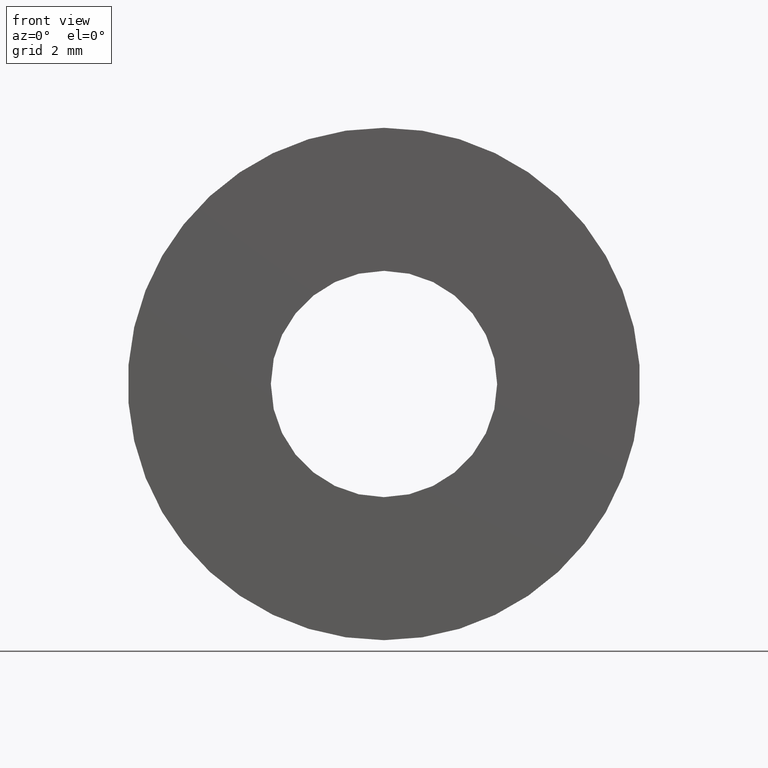
[diagram: clean part render]
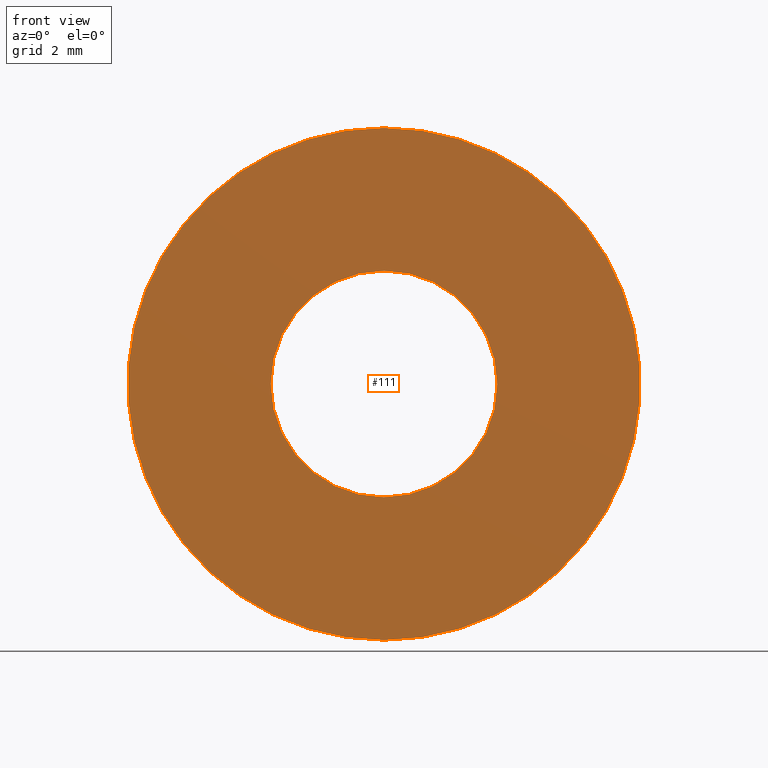
[diagram: same view with one face highlighted and labeled with its STEP entity id]
A machine part, front view. The second image highlights one B-rep face of the part: STEP entity #111.
In plain terms, the highlighted planar face has unit normal (0, 1, 0).
Its self-contained STEP definition (entity closure, byte-faithful):
#16 = AXIS2_PLACEMENT_3D ( 'NONE', #465, #442, #262 ) ;
#18 = ORIENTED_EDGE ( 'NONE', *, *, #426, .T. ) ;
#19 = FACE_BOUND ( 'NONE', #250, .T. ) ;
#30 = CIRCLE ( 'NONE', #357, 6.000000000000000900 ) ;
#33 = DIRECTION ( 'NONE',  ( 0.0000000000000000000, 1.000000000000000000, 0.0000000000000000000 ) ) ;
#38 = CARTESIAN_POINT ( 'NONE',  ( 0.0000000000000000000, 0.0000000000000000000, 0.0000000000000000000 ) ) ;
#50 = ORIENTED_EDGE ( 'NONE', *, *, #53, .F. ) ;
#53 = EDGE_CURVE ( 'NONE', #508, #180, #30, .T. ) ;
#73 = AXIS2_PLACEMENT_3D ( 'NONE', #38, #333, #374 ) ;
#75 = DIRECTION ( 'NONE',  ( 0.0000000000000000000, -0.0000000000000000000, 1.000000000000000000 ) ) ;
#77 = PLANE ( 'NONE',  #485 ) ;
#79 = CARTESIAN_POINT ( 'NONE',  ( 0.0000000000000000000, 0.0000000000000000000, 0.0000000000000000000 ) ) ;
#80 = EDGE_CURVE ( 'NONE', #261, #91, #457, .T. ) ;
#91 = VERTEX_POINT ( 'NONE', #151 ) ;
#105 = CARTESIAN_POINT ( 'NONE',  ( 0.0000000000000000000, 0.0000000000000000000, -6.000000000000000900 ) ) ;
#111 = ADVANCED_FACE ( 'NONE', ( #19, #325 ), #77, .F. ) ;
#144 = EDGE_CURVE ( 'NONE', #180, #508, #203, .T. ) ;
#151 = CARTESIAN_POINT ( 'NONE',  ( 0.0000000000000000000, 0.0000000000000000000, -2.649999999999999500 ) ) ;
#170 = ORIENTED_EDGE ( 'NONE', *, *, #144, .F. ) ;
#180 = VERTEX_POINT ( 'NONE', #230 ) ;
#203 = CIRCLE ( 'NONE', #73, 6.000000000000000900 ) ;
#230 = CARTESIAN_POINT ( 'NONE',  ( 7.347880794884120700E-016, 0.0000000000000000000, 6.000000000000000900 ) ) ;
#232 = EDGE_LOOP ( 'NONE', ( #50, #170 ) ) ;
#249 = DIRECTION ( 'NONE',  ( 0.0000000000000000000, 1.000000000000000000, 0.0000000000000000000 ) ) ;
#250 = EDGE_LOOP ( 'NONE', ( #18, #476 ) ) ;
#261 = VERTEX_POINT ( 'NONE', #364 ) ;
#262 = DIRECTION ( 'NONE',  ( 0.0000000000000000000, 0.0000000000000000000, 1.000000000000000000 ) ) ;
#270 = DIRECTION ( 'NONE',  ( 0.0000000000000000000, 0.0000000000000000000, 1.000000000000000000 ) ) ;
#280 = DIRECTION ( 'NONE',  ( 0.0000000000000000000, 0.0000000000000000000, 1.000000000000000000 ) ) ;
#288 = AXIS2_PLACEMENT_3D ( 'NONE', #79, #487, #270 ) ;
#325 = FACE_OUTER_BOUND ( 'NONE', #232, .T. ) ;
#327 = CARTESIAN_POINT ( 'NONE',  ( 0.0000000000000000000, 0.0000000000000000000, 0.0000000000000000000 ) ) ;
#333 = DIRECTION ( 'NONE',  ( 0.0000000000000000000, 1.000000000000000000, 0.0000000000000000000 ) ) ;
#357 = AXIS2_PLACEMENT_3D ( 'NONE', #327, #33, #280 ) ;
#364 = CARTESIAN_POINT ( 'NONE',  ( 3.245314017740485500E-016, 0.0000000000000000000, 2.649999999999999500 ) ) ;
#374 = DIRECTION ( 'NONE',  ( 0.0000000000000000000, 0.0000000000000000000, 1.000000000000000000 ) ) ;
#426 = EDGE_CURVE ( 'NONE', #91, #261, #479, .T. ) ;
#435 = CARTESIAN_POINT ( 'NONE',  ( 0.0000000000000000000, 0.0000000000000000000, 0.0000000000000000000 ) ) ;
#442 = DIRECTION ( 'NONE',  ( 0.0000000000000000000, 1.000000000000000000, 0.0000000000000000000 ) ) ;
#457 = CIRCLE ( 'NONE', #288, 2.649999999999999500 ) ;
#465 = CARTESIAN_POINT ( 'NONE',  ( 0.0000000000000000000, 0.0000000000000000000, 0.0000000000000000000 ) ) ;
#476 = ORIENTED_EDGE ( 'NONE', *, *, #80, .T. ) ;
#479 = CIRCLE ( 'NONE', #16, 2.649999999999999500 ) ;
#485 = AXIS2_PLACEMENT_3D ( 'NONE', #435, #249, #75 ) ;
#487 = DIRECTION ( 'NONE',  ( 0.0000000000000000000, 1.000000000000000000, 0.0000000000000000000 ) ) ;
#508 = VERTEX_POINT ( 'NONE', #105 ) ;